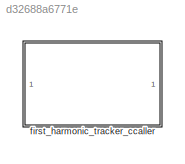
MODEL slx_d32688a6771e
KIND library
CONFIG AbsTol = auto
CONFIG EnableMultiTasking = off
CONFIG FixedStep = auto
CONFIG MaxStep = auto
CONFIG MinStep = auto
CONFIG RelTol = 1e-3
CONFIG SampleTimeConstraint = Unconstrained
CONFIG SolverName = VariableStepAuto
CONFIG StartTime = 0.0
CONFIG StopTime = 10.0
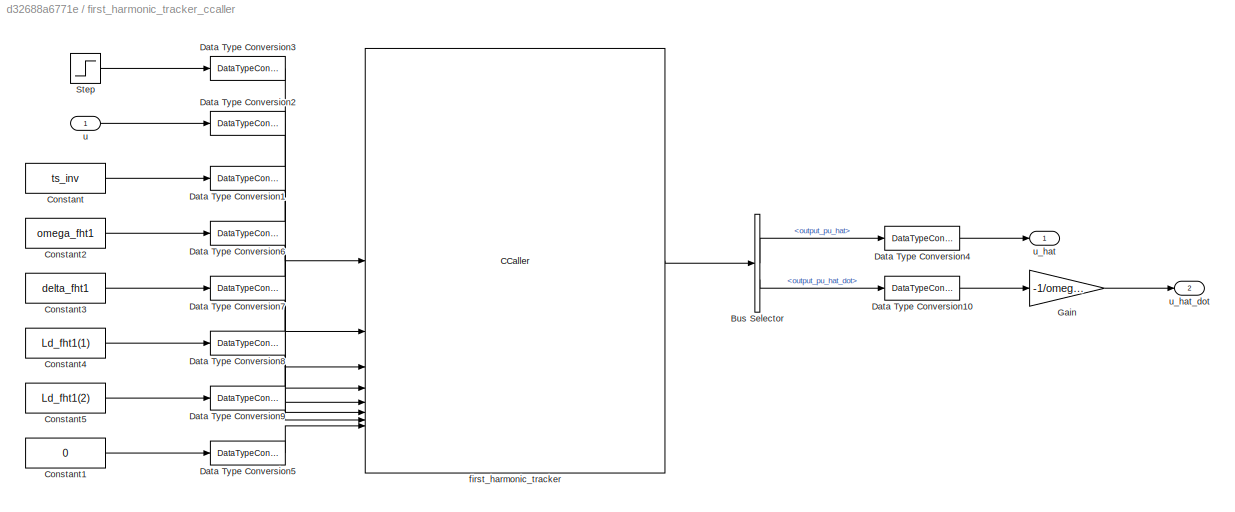
BLOCK [SubSystem] first_harmonic_tracker_ccaller
BLOCK [BusSelector] first_harmonic_tracker_ccaller/Bus Selector
  OutputSignals = output_pu_hat,output_pu_hat_dot
BLOCK [Constant] first_harmonic_tracker_ccaller/Constant
  Value = ts_inv
BLOCK [Constant] first_harmonic_tracker_ccaller/Constant1
  Value = 0
BLOCK [Constant] first_harmonic_tracker_ccaller/Constant2
  Value = omega_fht1
BLOCK [Constant] first_harmonic_tracker_ccaller/Constant3
  Value = delta_fht1
BLOCK [Constant] first_harmonic_tracker_ccaller/Constant4
  Value = Ld_fht1(1)
BLOCK [Constant] first_harmonic_tracker_ccaller/Constant5
  Value = Ld_fht1(2)
BLOCK [DataTypeConversion] first_harmonic_tracker_ccaller/Data Type Conversion1
  OutDataTypeStr = single
  RndMeth = Floor
  SaturateOnIntegerOverflow = off
BLOCK [DataTypeConversion] first_harmonic_tracker_ccaller/Data Type Conversion10
  OutDataTypeStr = double
  RndMeth = Floor
  SaturateOnIntegerOverflow = off
BLOCK [DataTypeConversion] first_harmonic_tracker_ccaller/Data Type Conversion2
  OutDataTypeStr = single
  RndMeth = Floor
  SaturateOnIntegerOverflow = off
BLOCK [DataTypeConversion] first_harmonic_tracker_ccaller/Data Type Conversion3
  OutDataTypeStr = uint8
  RndMeth = Floor
  SaturateOnIntegerOverflow = off
BLOCK [DataTypeConversion] first_harmonic_tracker_ccaller/Data Type Conversion4
  OutDataTypeStr = double
  RndMeth = Floor
  SaturateOnIntegerOverflow = off
BLOCK [DataTypeConversion] first_harmonic_tracker_ccaller/Data Type Conversion5
  OutDataTypeStr = uint8
  RndMeth = Floor
  SaturateOnIntegerOverflow = off
BLOCK [DataTypeConversion] first_harmonic_tracker_ccaller/Data Type Conversion6
  OutDataTypeStr = single
  RndMeth = Floor
  SaturateOnIntegerOverflow = off
BLOCK [DataTypeConversion] first_harmonic_tracker_ccaller/Data Type Conversion7
  OutDataTypeStr = single
  RndMeth = Floor
  SaturateOnIntegerOverflow = off
BLOCK [DataTypeConversion] first_harmonic_tracker_ccaller/Data Type Conversion8
  OutDataTypeStr = single
  RndMeth = Floor
  SaturateOnIntegerOverflow = off
BLOCK [DataTypeConversion] first_harmonic_tracker_ccaller/Data Type Conversion9
  OutDataTypeStr = single
  RndMeth = Floor
  SaturateOnIntegerOverflow = off
BLOCK [Gain] first_harmonic_tracker_ccaller/Gain
  Gain = -1/omega_fht1
BLOCK [Step] first_harmonic_tracker_ccaller/Step
  After = 0
  Before = 1
  Time = 0.0125
BLOCK [CCaller] first_harmonic_tracker_ccaller/first_harmonic_tracker
  FunctionName = first_harmonic_tracker_process_simulink
  PortSpecificationStruct = %)30     .    B \   8    (     @         %    "     D    !     0         %  0 "0    $    _    07)G3F%M90  4&]R=$YA;64 4V-O<&4     26YD97@     5'EP90      4VEZ90      27-';&]B86P   X    P    !@    @    $          4    (     0    ,    !         !   P!O=70 #@   #     &    "     0         !0    @    !     P    $         $  # &]U=  .    .     8    (    !          %    "     $    &     0         0    !@...<+4914ch>
BLOCK [Inport] first_harmonic_tracker_ccaller/u
BLOCK [Outport] first_harmonic_tracker_ccaller/u_hat
BLOCK [Outport] first_harmonic_tracker_ccaller/u_hat_dot
  Port = 2
LINE first_harmonic_tracker_ccaller/Bus Selector:1 -> first_harmonic_tracker_ccaller/Data Type Conversion4:1
LINE first_harmonic_tracker_ccaller/Bus Selector:2 -> first_harmonic_tracker_ccaller/Data Type Conversion10:1
LINE first_harmonic_tracker_ccaller/Constant1:1 -> first_harmonic_tracker_ccaller/Data Type Conversion5:1
LINE first_harmonic_tracker_ccaller/Constant2:1 -> first_harmonic_tracker_ccaller/Data Type Conversion6:1
LINE first_harmonic_tracker_ccaller/Constant3:1 -> first_harmonic_tracker_ccaller/Data Type Conversion7:1
LINE first_harmonic_tracker_ccaller/Constant4:1 -> first_harmonic_tracker_ccaller/Data Type Conversion8:1
LINE first_harmonic_tracker_ccaller/Constant5:1 -> first_harmonic_tracker_ccaller/Data Type Conversion9:1
LINE first_harmonic_tracker_ccaller/Constant:1 -> first_harmonic_tracker_ccaller/Data Type Conversion1:1
LINE first_harmonic_tracker_ccaller/Data Type Conversion10:1 -> first_harmonic_tracker_ccaller/Gain:1
LINE first_harmonic_tracker_ccaller/Data Type Conversion1:1 -> first_harmonic_tracker_ccaller/first_harmonic_tracker:3
LINE first_harmonic_tracker_ccaller/Data Type Conversion2:1 -> first_harmonic_tracker_ccaller/first_harmonic_tracker:2
LINE first_harmonic_tracker_ccaller/Data Type Conversion3:1 -> first_harmonic_tracker_ccaller/first_harmonic_tracker:1
LINE first_harmonic_tracker_ccaller/Data Type Conversion4:1 -> first_harmonic_tracker_ccaller/u_hat:1
LINE first_harmonic_tracker_ccaller/Data Type Conversion5:1 -> first_harmonic_tracker_ccaller/first_harmonic_tracker:8
LINE first_harmonic_tracker_ccaller/Data Type Conversion6:1 -> first_harmonic_tracker_ccaller/first_harmonic_tracker:4
LINE first_harmonic_tracker_ccaller/Data Type Conversion7:1 -> first_harmonic_tracker_ccaller/first_harmonic_tracker:5
LINE first_harmonic_tracker_ccaller/Data Type Conversion8:1 -> first_harmonic_tracker_ccaller/first_harmonic_tracker:6
LINE first_harmonic_tracker_ccaller/Data Type Conversion9:1 -> first_harmonic_tracker_ccaller/first_harmonic_tracker:7
LINE first_harmonic_tracker_ccaller/Gain:1 -> first_harmonic_tracker_ccaller/u_hat_dot:1
LINE first_harmonic_tracker_ccaller/Step:1 -> first_harmonic_tracker_ccaller/Data Type Conversion3:1
LINE first_harmonic_tracker_ccaller/first_harmonic_tracker:1 -> first_harmonic_tracker_ccaller/Bus Selector:1
LINE first_harmonic_tracker_ccaller/u:1 -> first_harmonic_tracker_ccaller/Data Type Conversion2:1
